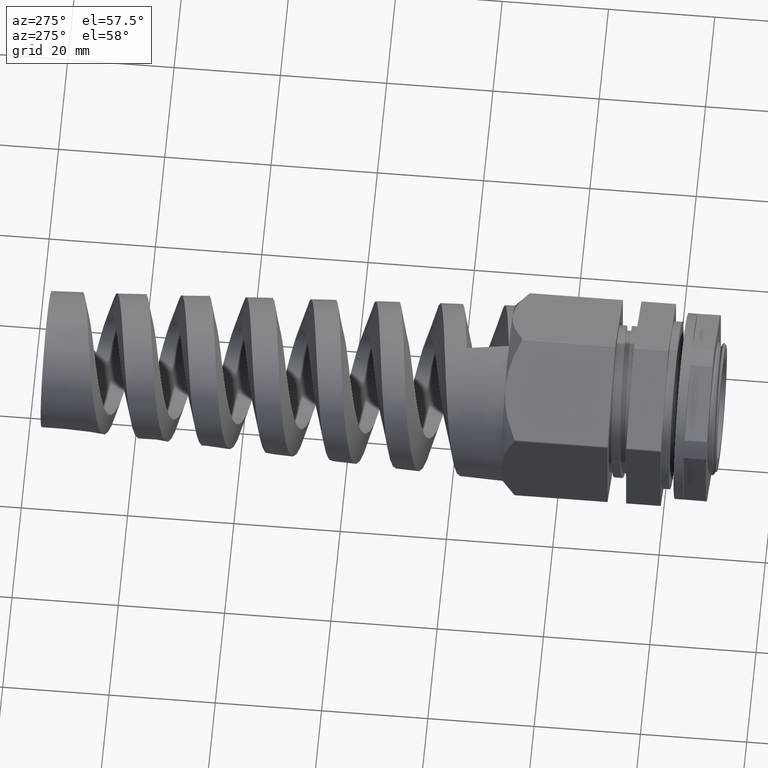
[diagram: clean part render]
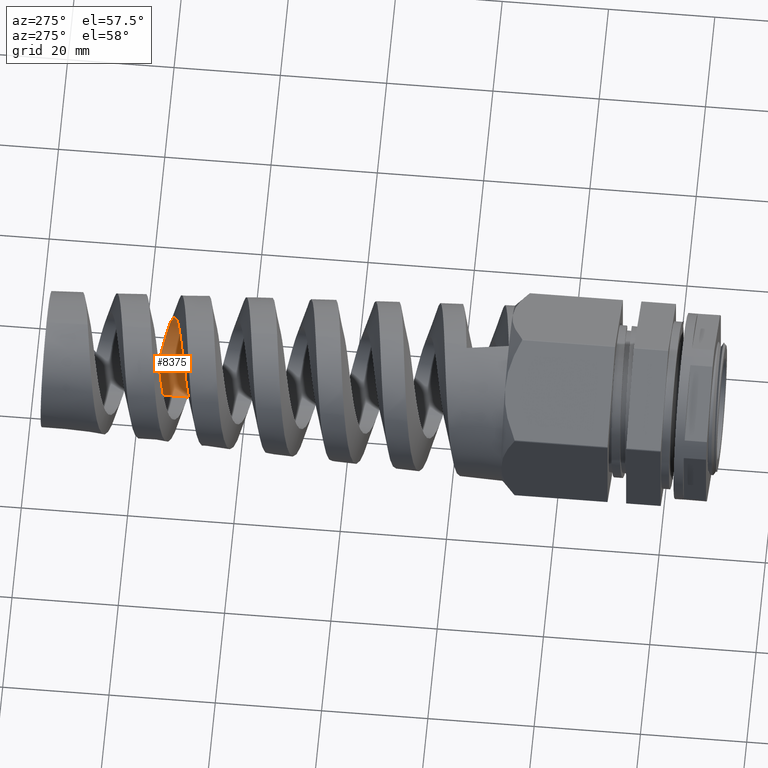
[diagram: same view with one face highlighted and labeled with its STEP entity id]
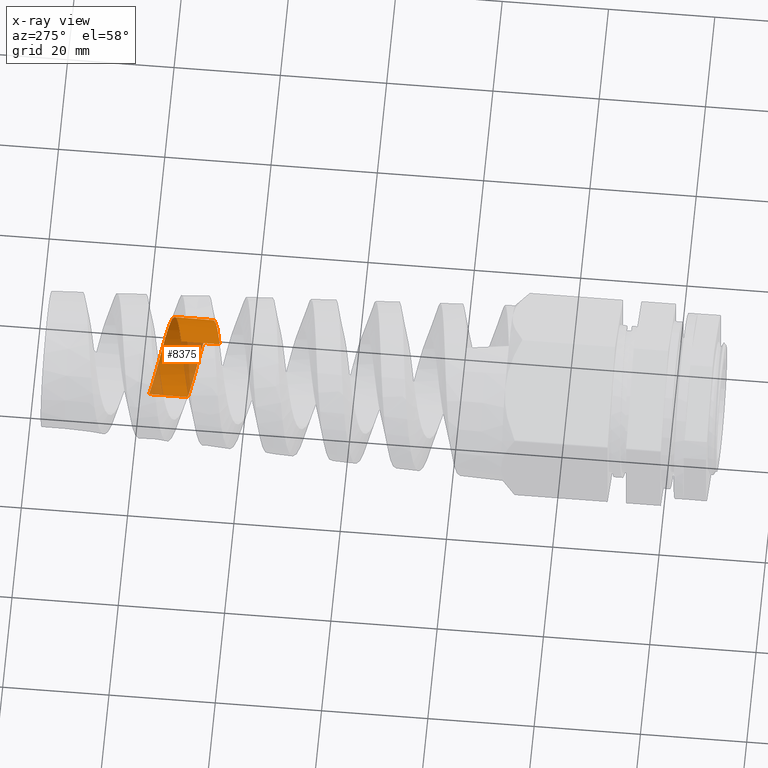
[diagram: x-ray of the same camera — body ghosted, the highlighted face saturated]
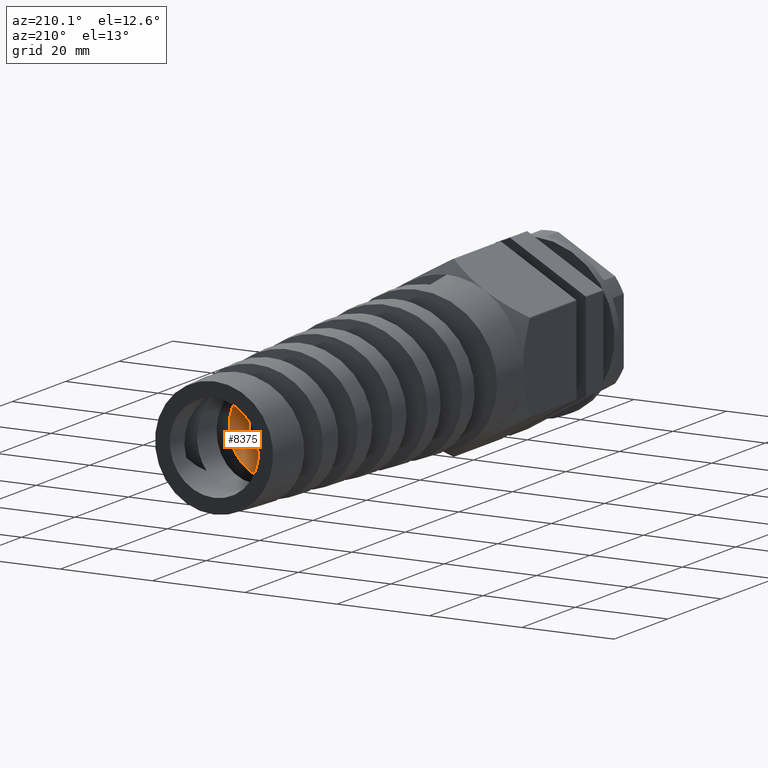
[diagram: same view with one face highlighted and labeled with its STEP entity id]
A machine part, auxiliary view. The second image highlights one B-rep face of the part: STEP entity #8375.
The next image is the same camera in x-ray: the body ghosted, the highlighted face saturated — about 26% of this face is hidden behind the body in this view.
A second angle (auxiliary view) of the same face is appended — the face is thin or edge-on in the first view.
In plain terms, the highlighted cylindrical surface (partial cylindrical patch) has radius 9.6 mm, axis along (-0, -1, -0).
Its self-contained STEP definition (entity closure, byte-faithful):
#287 = CARTESIAN_POINT ( 'NONE',  ( 3.850764836560385300, 96.91209743477566000, -8.793839330662685000 ) ) ;
#549 = EDGE_CURVE ( 'NONE', #14064, #5769, #10030, .T. ) ;
#603 =( BOUNDED_CURVE ( )  B_SPLINE_CURVE ( 2, ( #6103, #12862, #8449, #1437, #9601, #2618, #10684, #3797, #11812, #4972, #12909, #6151, #14020, #7330, #287, #8493, #1497, #9644, #2669 ),
 .UNSPECIFIED., .F., .T. ) 
 B_SPLINE_CURVE_WITH_KNOTS ( ( 3, 2, 2, 2, 2, 2, 2, 2, 2, 3 ),
 ( 0.7147438921588459300, 0.7232142857142857000, 0.7321428571428571000, 0.7410714285714286000, 0.7500000000000000000, 0.7589285714285714000, 0.7678571428571429000, 0.7767857142857143000, 0.7857142857142857000, 0.7861724635874524100 ),
 .UNSPECIFIED. ) 
 CURVE ( )  GEOMETRIC_REPRESENTATION_ITEM ( )  RATIONAL_B_SPLINE_CURVE ( ( 0.9981291550618546200, 0.9817713014512892100, 1.000000000000000000, 0.9807852804032303200, 1.000000000000000000, 0.9807852804032303200, 1.000000000000000000, 0.9807852804032303200, 1.000000000000000000, 0.9807852804032303200, 1.000000000000000000, 0.9807852804032303200, 1.000000000000000000, 0.9807852804032303200, 1.000000000000000000, 0.9807852804032303200, 1.000000000000000000, 0.9990139789518656100, 0.9981291550617190600 ) ) 
 REPRESENTATION_ITEM ( '' )  );
#808 = EDGE_LOOP ( 'NONE', ( #1189, #8962, #12337, #8882 ) ) ;
#896 = CARTESIAN_POINT ( 'NONE',  ( 2.206413520427327800E-014, 97.69995363234251300, -9.599999999999992500 ) ) ;
#1189 = ORIENTED_EDGE ( 'NONE', *, *, #9853, .F. ) ;
#1437 = CARTESIAN_POINT ( 'NONE',  ( 5.273773949012455600, 92.78709743477568800, 8.245830635296012900 ) ) ;
#1497 = CARTESIAN_POINT ( 'NONE',  ( 0.1923861982871907800, 97.66209743477566000, -9.598072074677729000 ) ) ;
#1545 = CARTESIAN_POINT ( 'NONE',  ( -2.134450494838006000E-014, 91.69995363234251300, 9.599999999999990800 ) ) ;
#1839 = CARTESIAN_POINT ( 'NONE',  ( 0.0000000000000000000, -11.00000000000000000, -9.599999999999994300 ) ) ;
#2161 = EDGE_CURVE ( 'NONE', #14570, #14064, #3737, .T. ) ;
#2618 = CARTESIAN_POINT ( 'NONE',  ( 8.027874580800116200, 93.53709743477570300, 5.599968236178846800 ) ) ;
#2669 = CARTESIAN_POINT ( 'NONE',  ( 2.206413520427327800E-014, 97.69995363234251300, -9.599999999999992500 ) ) ;
#3081 = CARTESIAN_POINT ( 'NONE',  ( -1.019847118526275700E-014, 84.42246967870687500, 9.599999999999138100 ) ) ;
#3298 = VECTOR ( 'NONE', #12120, 1000.000000000000000 ) ;
#3493 = EDGE_CURVE ( 'NONE', #8141, #14570, #603, .T. ) ;
#3737 = LINE ( 'NONE', #1839, #9565 ) ;
#3797 = CARTESIAN_POINT ( 'NONE',  ( 9.559804080525255500, 94.28709743477570300, 2.101561436941923300 ) ) ;
#3892 = CYLINDRICAL_SURFACE ( 'NONE', #8820, 9.599999999999994300 ) ;
#4090 = CARTESIAN_POINT ( 'NONE',  ( 1.175660927181458400E-015, -11.00000000000000000, 9.599999999999994300 ) ) ;
#4972 = CARTESIAN_POINT ( 'NONE',  ( 9.636340068830209700, 95.03709743477568800, -1.716789040367542800 ) ) ;
#5769 = VERTEX_POINT ( 'NONE', #3081 ) ;
#6103 = CARTESIAN_POINT ( 'NONE',  ( -2.134450494838006000E-014, 91.69995363234251300, 9.599999999999990800 ) ) ;
#6151 = CARTESIAN_POINT ( 'NONE',  ( 8.245830635296014700, 95.78709743477568800, -5.273773949012454700 ) ) ;
#6431 = LINE ( 'NONE', #4090, #3298 ) ;
#6611 = CARTESIAN_POINT ( 'NONE',  ( 1.417969255704982300E-015, 90.42246967870686100, -9.599999999999138100 ) ) ;
#7100 = CARTESIAN_POINT ( 'NONE',  ( -1.019847118526275700E-014, 84.42246967870687500, 9.599999999999138100 ) ) ;
#7117 = CARTESIAN_POINT ( 'NONE',  ( 1.534094311727549800, 84.72740784956455700, 9.599999999999113200 ) ) ;
#7121 = CARTESIAN_POINT ( 'NONE',  ( 2.991788760516715500, 85.02867397917366100, 9.121907695895048500 ) ) ;
#7141 = CARTESIAN_POINT ( 'NONE',  ( 4.806249015325920300, 85.40367397917366100, 8.526803910840813600 ) ) ;
#7161 = CARTESIAN_POINT ( 'NONE',  ( 6.254855348221349600, 85.77867397917364700, 7.282635825908792000 ) ) ;
#7167 = CARTESIAN_POINT ( 'NONE',  ( 7.703461681116778000, 86.15367397917366100, 6.038467740976768600 ) ) ;
#7179 = CARTESIAN_POINT ( 'NONE',  ( 8.565676909564208700, 86.52867397917364700, 4.334648668686078600 ) ) ;
#7184 = CARTESIAN_POINT ( 'NONE',  ( 9.427892138011641200, 86.90367397917366100, 2.630829596395388900 ) ) ;
#7204 = CARTESIAN_POINT ( 'NONE',  ( 9.572451809480460500, 87.27867397917364700, 0.7267505453439396800 ) ) ;
#7216 = CARTESIAN_POINT ( 'NONE',  ( 9.717011480949281600, 87.65367397917364700, -1.177328505707509600 ) ) ;
#7221 = CARTESIAN_POINT ( 'NONE',  ( 9.121907695895048500, 88.02867397917364700, -2.991788760516715100 ) ) ;
#7231 = CARTESIAN_POINT ( 'NONE',  ( 8.526803910840813600, 88.40367397917364700, -4.806249015325917600 ) ) ;
#7237 = CARTESIAN_POINT ( 'NONE',  ( 7.282635825908792000, 88.77867397917364700, -6.254855348221349600 ) ) ;
#7255 = CARTESIAN_POINT ( 'NONE',  ( 6.038467740976767800, 89.15367397917364700, -7.703461681116778000 ) ) ;
#7272 = CARTESIAN_POINT ( 'NONE',  ( 4.334648668686078600, 89.52867397917364700, -8.565676909564208700 ) ) ;
#7275 = CARTESIAN_POINT ( 'NONE',  ( 2.630829596395392000, 89.90367397917363200, -9.427892138011641200 ) ) ;
#7290 = CARTESIAN_POINT ( 'NONE',  ( 1.417969255704982300E-015, 90.42246967870686100, -9.599999999999138100 ) ) ;
#7330 = CARTESIAN_POINT ( 'NONE',  ( 5.599968236178845900, 96.53709743477568800, -8.027874580800119700 ) ) ;
#7382 = CARTESIAN_POINT ( 'NONE',  ( 0.3638973932301976000, 90.35013631261381300, -9.599999999999138100 ) ) ;
#7398 = CARTESIAN_POINT ( 'NONE',  ( 0.7267505453439401200, 90.27867397917364700, -9.572451809480460500 ) ) ;
#8141 = VERTEX_POINT ( 'NONE', #1545 ) ;
#8375 = ADVANCED_FACE ( 'NONE', ( #10047 ), #3892, .F. ) ;
#8449 = CARTESIAN_POINT ( 'NONE',  ( 3.495281494689998600, 92.41209743477567400, 8.941085352063106800 ) ) ;
#8493 = CARTESIAN_POINT ( 'NONE',  ( 2.101561436941926000, 97.28709743477567400, -9.559804080525255500 ) ) ;
#8820 = AXIS2_PLACEMENT_3D ( 'NONE', #9301, #10391, #11509 ) ;
#8882 = ORIENTED_EDGE ( 'NONE', *, *, #549, .T. ) ;
#8962 = ORIENTED_EDGE ( 'NONE', *, *, #3493, .T. ) ;
#9301 = CARTESIAN_POINT ( 'NONE',  ( 0.0000000000000000000, -11.00000000000000000, 0.0000000000000000000 ) ) ;
#9565 = VECTOR ( 'NONE', #14273, 1000.000000000000000 ) ;
#9601 = CARTESIAN_POINT ( 'NONE',  ( 6.650824264906284500, 93.16209743477568800, 6.922899435737429400 ) ) ;
#9644 = CARTESIAN_POINT ( 'NONE',  ( 0.09620275912245290800, 97.68098977580150700, -9.600000000000140000 ) ) ;
#9853 = EDGE_CURVE ( 'NONE', #8141, #5769, #6431, .T. ) ;
#10030 =( BOUNDED_CURVE ( )  B_SPLINE_CURVE ( 2, ( #7290, #7382, #7398, #7275, #7272, #7255, #7237, #7231, #7221, #7216, #7204, #7184, #7179, #7167, #7161, #7141, #7121, #7117, #7100 ),
 .UNSPECIFIED., .F., .T. ) 
 B_SPLINE_CURVE_WITH_KNOTS ( ( 3, 2, 2, 2, 2, 2, 2, 2, 2, 3 ),
 ( 0.3554144916707062700, 0.3571428571428571000, 0.3660714285714286000, 0.3750000000000000000, 0.3839285714285714000, 0.3928571428571429000, 0.4017857142857143000, 0.4107142857142857000, 0.4196428571428571000, 0.4268430630992773300 ),
 .UNSPECIFIED. ) 
 CURVE ( )  GEOMETRIC_REPRESENTATION_ITEM ( )  RATIONAL_B_SPLINE_CURVE ( ( 0.9940009760863275400, 0.9962804735142909400, 1.000000000000000000, 0.9807852804032304300, 1.000000000000000000, 0.9807852804032304300, 1.000000000000000000, 0.9807852804032304300, 1.000000000000000000, 0.9807852804032304300, 1.000000000000000000, 0.9807852804032304300, 1.000000000000000000, 0.9807852804032304300, 1.000000000000000000, 0.9807852804032304300, 1.000000000000000000, 0.9845048068889403800, 0.9940009760863264300 ) ) 
 REPRESENTATION_ITEM ( '' )  );
#10047 = FACE_OUTER_BOUND ( 'NONE', #808, .T. ) ;
#10391 = DIRECTION ( 'NONE',  ( -0.0000000000000000000, -1.000000000000000000, -0.0000000000000000000 ) ) ;
#10684 = CARTESIAN_POINT ( 'NONE',  ( 8.793839330662685000, 93.91209743477568800, 3.850764836560384800 ) ) ;
#11509 = DIRECTION ( 'NONE',  ( 0.0000000000000000000, 0.0000000000000000000, -1.000000000000000000 ) ) ;
#11812 = CARTESIAN_POINT ( 'NONE',  ( 9.598072074677729000, 94.66209743477568800, 0.1923861982871903100 ) ) ;
#12120 = DIRECTION ( 'NONE',  ( -0.0000000000000000000, -1.000000000000000000, -0.0000000000000000000 ) ) ;
#12337 = ORIENTED_EDGE ( 'NONE', *, *, #2161, .T. ) ;
#12862 = CARTESIAN_POINT ( 'NONE',  ( 1.809748550954708400, 92.05669820192284200, 9.599999999999996100 ) ) ;
#12909 = CARTESIAN_POINT ( 'NONE',  ( 8.941085352063108600, 95.41209743477566000, -3.495281494689998200 ) ) ;
#14020 = CARTESIAN_POINT ( 'NONE',  ( 6.922899435737429400, 96.16209743477566000, -6.650824264906284500 ) ) ;
#14064 = VERTEX_POINT ( 'NONE', #6611 ) ;
#14273 = DIRECTION ( 'NONE',  ( -0.0000000000000000000, -1.000000000000000000, -0.0000000000000000000 ) ) ;
#14570 = VERTEX_POINT ( 'NONE', #896 ) ;